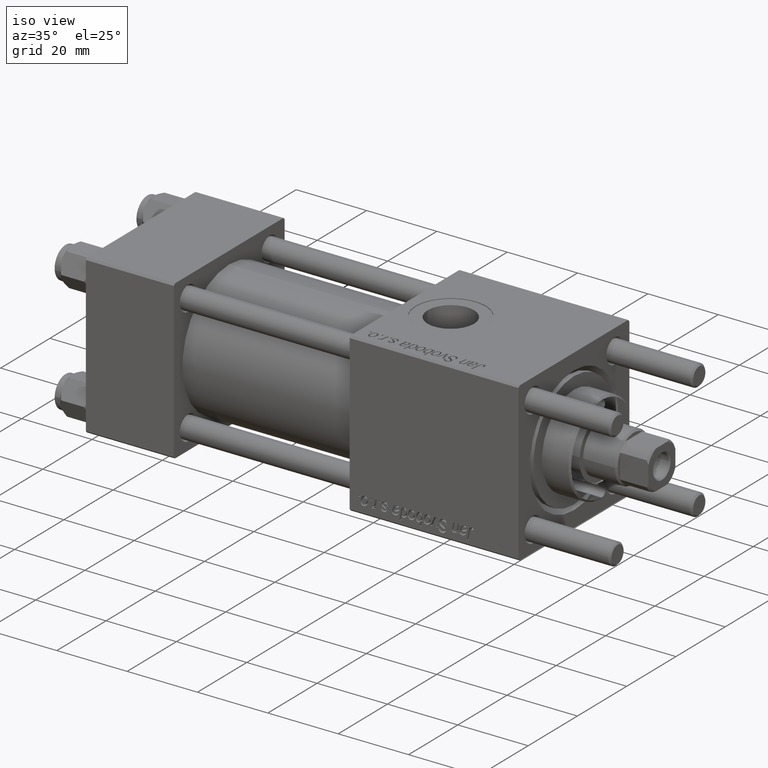
[diagram: clean part render]
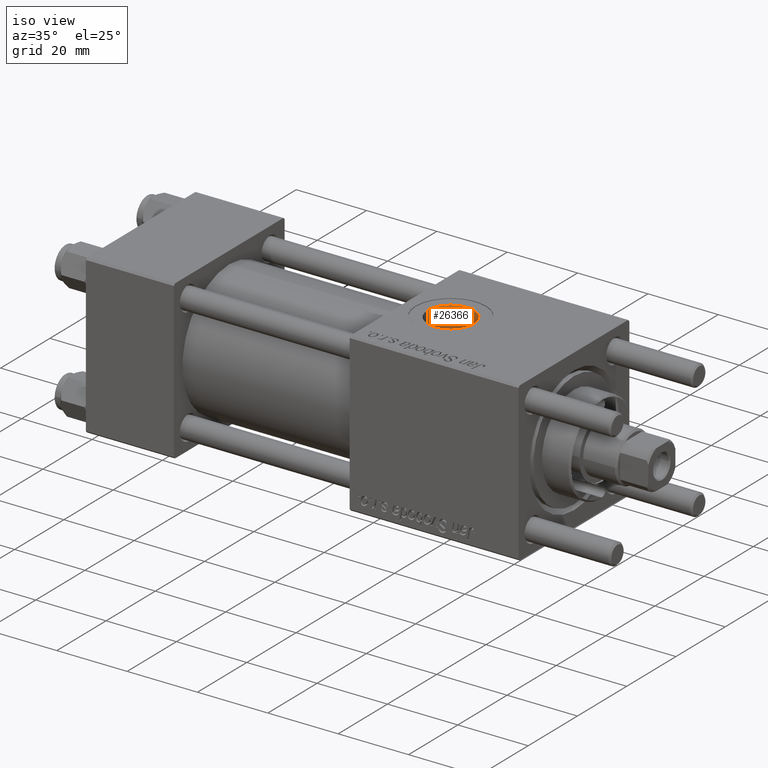
[diagram: same view with one face highlighted and labeled with its STEP entity id]
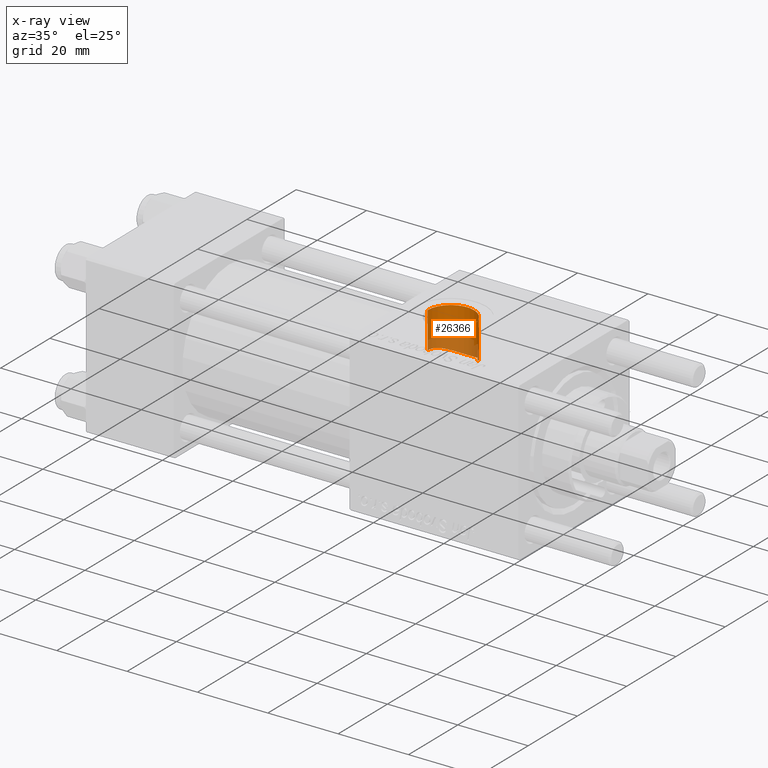
[diagram: x-ray of the same camera — body ghosted, the highlighted face saturated]
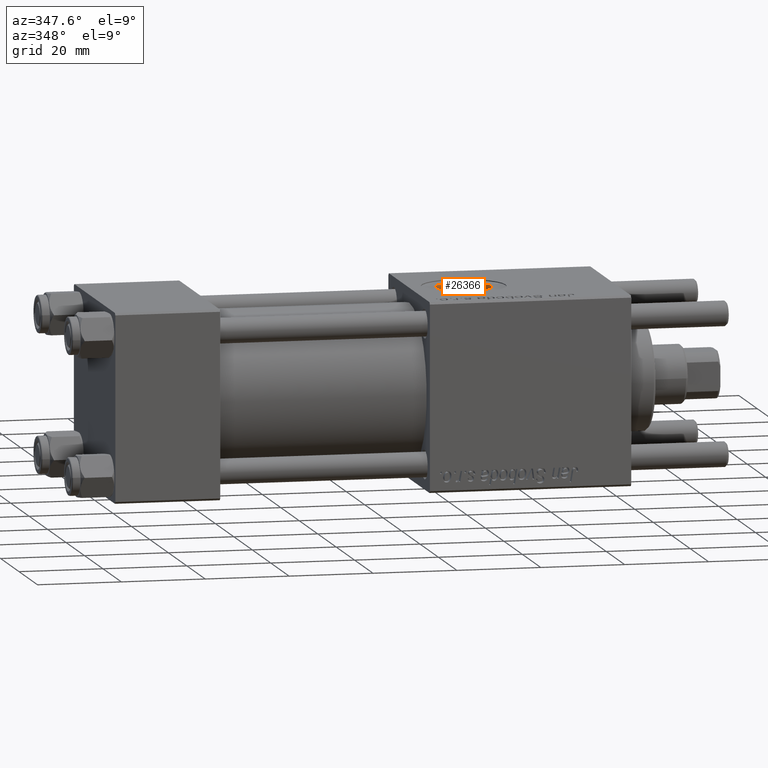
[diagram: same view with one face highlighted and labeled with its STEP entity id]
A machine part, iso view. The second image highlights one B-rep face of the part: STEP entity #26366.
The next image is the same camera in x-ray: the body ghosted, the highlighted face saturated — about 32% of this face is hidden behind the body in this view.
A second angle (auxiliary view) of the same face is appended — the face is thin or edge-on in the first view.
In plain terms, the highlighted cylindrical surface (edge-blend (fillet) strip) has radius 6.58 mm, axis along (0, 0, -1).
Its self-contained STEP definition (entity closure, byte-faithful):
#203 = CARTESIAN_POINT ( 'NONE',  ( 94.58000000000001251, -4.398352834091461452E-15, 45.29999999999999005 ) ) ;
#956 = CIRCLE ( 'NONE', #32215, 6.580000000000002736 ) ;
#1373 = EDGE_CURVE ( 'NONE', #36715, #36521, #47952, .T. ) ;
#2569 = LINE ( 'NONE', #21002, #34318 ) ;
#2950 = DIRECTION ( 'NONE',  ( -0.000000000000000000, -0.000000000000000000, -1.000000000000000000 ) ) ;
#2982 = CARTESIAN_POINT ( 'NONE',  ( 87.82138093783677846, 6.589573402368412047, 10.02884697551796478 ) ) ;
#3177 = B_SPLINE_CURVE_WITH_KNOTS ( 'NONE', 3,
 ( #36411, #9929, #40732, #45338, #42711, #28636, #55096, #7306, #28911, #46745, #41862, #33223, #55655, #24293, #50777, #42436, #46189, #24877, #32939, #20554, #55378, #19993, #28347, #11628, #2982, #50496, #15676, #33792, #37265, #20835, #24581, #11346, #37548, #29477, #46463, #47034, #38109, #7590, #6734, #38395 ),
 .UNSPECIFIED., .F., .F.,
 ( 4, 2, 2, 2, 2, 2, 2, 2, 2, 2, 2, 2, 2, 2, 2, 2, 2, 2, 2, 4 ),
 ( 0.01908272948376852837, 0.02027211068882234235, 0.02146149189387615633, 0.02205618249640306158, 0.02265087309892997031, 0.02384025430398376347, 0.02502963550903755663, 0.02562432611156446882, 0.02621901671409138102, 0.02740839791914520540, 0.02800308852167211413, 0.02859777912419902285, 0.02978716032925284724, 0.03097654153430666815, 0.03216592273936048907, 0.03335530394441431346, 0.03454468514946813784, 0.03573406635452195529, 0.03692344755957577968, 0.03811282876462960406 ),
 .UNSPECIFIED. ) ;
#3869 = CARTESIAN_POINT ( 'NONE',  ( 81.42000000000000171, -5.204170427930420494E-15, 22.29999999999999716 ) ) ;
#5803 = CARTESIAN_POINT ( 'NONE',  ( 88.00000000000001421, -5.204170427930420494E-15, 45.29999999999999005 ) ) ;
#6734 = CARTESIAN_POINT ( 'NONE',  ( 94.18483796286322729, 2.281096005955299155, 11.78754883984398028 ) ) ;
#7306 = CARTESIAN_POINT ( 'NONE',  ( 82.16614062154590670, 3.049694619472453017, 11.60741639897010735 ) ) ;
#7590 = CARTESIAN_POINT ( 'NONE',  ( 94.03738513764136542, 2.645683237586368364, 11.71024983958922583 ) ) ;
#8812 = ORIENTED_EDGE ( 'NONE', *, *, #37282, .T. ) ;
#9346 = CARTESIAN_POINT ( 'NONE',  ( 81.42000000000000171, -5.204170427930420494E-15, 45.29999999999999005 ) ) ;
#9929 = CARTESIAN_POINT ( 'NONE',  ( 81.42000000000004434, 0.3976591527617308608, 12.00000000000000533 ) ) ;
#11346 = CARTESIAN_POINT ( 'NONE',  ( 91.88215370346611621, 5.326621984685210087, 10.75555448901162414 ) ) ;
#11628 = CARTESIAN_POINT ( 'NONE',  ( 87.42561790000441135, 6.566992248200678617, 10.04387831561290234 ) ) ;
#12754 = CARTESIAN_POINT ( 'NONE',  ( 94.58000000000001251, 2.020172399822898567E-15, 16.50000000000000000 ) ) ;
#13074 = VERTEX_POINT ( 'NONE', #37083 ) ;
#15244 = VERTEX_POINT ( 'NONE', #24998 ) ;
#15404 = VERTEX_POINT ( 'NONE', #53440 ) ;
#15676 = CARTESIAN_POINT ( 'NONE',  ( 89.01891393464315172, 6.512687558946026911, 10.07943174470872272 ) ) ;
#19196 = VECTOR ( 'NONE', #22024, 1000.000000000000000 ) ;
#19658 = ORIENTED_EDGE ( 'NONE', *, *, #53837, .F. ) ;
#19993 = CARTESIAN_POINT ( 'NONE',  ( 86.63652304892134737, 6.440225530122367203, 10.12553965146808110 ) ) ;
#20155 = DIRECTION ( 'NONE',  ( 0.000000000000000000, 0.000000000000000000, -1.000000000000000000 ) ) ;
#20554 = CARTESIAN_POINT ( 'NONE',  ( 86.06381098789942996, 6.291694806526731298, 10.21860835373034782 ) ) ;
#20835 = CARTESIAN_POINT ( 'NONE',  ( 90.89150051817900078, 5.923651265023259782, 10.43747821104793339 ) ) ;
#21002 = CARTESIAN_POINT ( 'NONE',  ( 94.30000000000001137, 1.899052395275078853, 45.29999999999999005 ) ) ;
#22024 = DIRECTION ( 'NONE',  ( 0.000000000000000000, 0.000000000000000000, -1.000000000000000000 ) ) ;
#22793 = CYLINDRICAL_SURFACE ( 'NONE', #34928, 6.580000000000002736 ) ;
#22915 = VECTOR ( 'NONE', #52885, 1000.000000000000000 ) ;
#23032 = EDGE_CURVE ( 'NONE', #38481, #13074, #43618, .T. ) ;
#24293 = CARTESIAN_POINT ( 'NONE',  ( 84.01097073899009615, 5.236455063200054383, 10.79801533958693049 ) ) ;
#24581 = CARTESIAN_POINT ( 'NONE',  ( 91.23583201536588660, 5.742247844999425865, 10.53951819678818680 ) ) ;
#24877 = CARTESIAN_POINT ( 'NONE',  ( 85.15847559875078332, 5.947407073964698476, 10.42466916922575493 ) ) ;
#24998 = CARTESIAN_POINT ( 'NONE',  ( 94.30000000000001137, 1.899052395275078853, 11.84878052796995718 ) ) ;
#25585 = CARTESIAN_POINT ( 'NONE',  ( 94.58000000000001251, 0.6476041116638452388, 16.50000000000000000 ) ) ;
#26366 = ADVANCED_FACE ( 'NONE', ( #27122 ), #22793, .F. ) ;
#27122 = FACE_OUTER_BOUND ( 'NONE', #32329, .T. ) ;
#27123 = ORIENTED_EDGE ( 'NONE', *, *, #49396, .F. ) ;
#28347 = CARTESIAN_POINT ( 'NONE',  ( 86.83419489992905937, 6.478967816313746297, 10.10070273480327430 ) ) ;
#28636 = CARTESIAN_POINT ( 'NONE',  ( 81.91700611386447406, 2.516447426058158410, 11.73468626117324298 ) ) ;
#28911 = CARTESIAN_POINT ( 'NONE',  ( 82.25859302551884866, 3.220243119365621798, 11.56113513882421096 ) ) ;
#29477 = CARTESIAN_POINT ( 'NONE',  ( 92.75223196117465818, 4.567322448867138007, 11.10049212416560493 ) ) ;
#29891 = CARTESIAN_POINT ( 'NONE',  ( 94.30000000000001137, 1.899052395275078853, 16.39035081991841025 ) ) ;
#32215 = AXIS2_PLACEMENT_3D ( 'NONE', #34037, #2950, #51593 ) ;
#32329 = EDGE_LOOP ( 'NONE', ( #27123, #19658, #39306, #8812, #37771, #33559 ) ) ;
#32939 = CARTESIAN_POINT ( 'NONE',  ( 85.51128222741164109, 6.103612828859660944, 10.33283268697370794 ) ) ;
#33223 = CARTESIAN_POINT ( 'NONE',  ( 83.29103396094789957, 4.612007366749330650, 11.08271043945085843 ) ) ;
#33559 = ORIENTED_EDGE ( 'NONE', *, *, #1373, .T. ) ;
#33792 = CARTESIAN_POINT ( 'NONE',  ( 89.79279569586574894, 6.343435066235461051, 10.18679906040885719 ) ) ;
#34037 = CARTESIAN_POINT ( 'NONE',  ( 88.00000000000001421, -5.204170427930420494E-15, 22.29999999999999716 ) ) ;
#34156 = EDGE_CURVE ( 'NONE', #36715, #15244, #2569, .T. ) ;
#34318 = VECTOR ( 'NONE', #20155, 1000.000000000000000 ) ;
#34928 = AXIS2_PLACEMENT_3D ( 'NONE', #5803, #40359, #40924 ) ;
#36411 = CARTESIAN_POINT ( 'NONE',  ( 81.42000000000000171, 1.469576107744199801E-15, 12.00000000000000178 ) ) ;
#36521 = VERTEX_POINT ( 'NONE', #12754 ) ;
#36715 = VERTEX_POINT ( 'NONE', #29891 ) ;
#37083 = CARTESIAN_POINT ( 'NONE',  ( 81.42000000000000171, 1.469576107744199801E-15, 12.00000000000000178 ) ) ;
#37265 = CARTESIAN_POINT ( 'NONE',  ( 90.16689331473169489, 6.225350826966485229, 10.26038999243691663 ) ) ;
#37282 = EDGE_CURVE ( 'NONE', #13074, #15244, #3177, .T. ) ;
#37548 = CARTESIAN_POINT ( 'NONE',  ( 92.18812012102893050, 5.089576879915268748, 10.87095059937355934 ) ) ;
#37771 = ORIENTED_EDGE ( 'NONE', *, *, #34156, .F. ) ;
#38109 = CARTESIAN_POINT ( 'NONE',  ( 93.68108973531616357, 3.342884759177825238, 11.53059896909529591 ) ) ;
#38395 = CARTESIAN_POINT ( 'NONE',  ( 94.30000000000001137, 1.899052395275078853, 11.84878052796995718 ) ) ;
#38481 = VERTEX_POINT ( 'NONE', #3869 ) ;
#39306 = ORIENTED_EDGE ( 'NONE', *, *, #23032, .T. ) ;
#39672 = LINE ( 'NONE', #203, #22915 ) ;
#40359 = DIRECTION ( 'NONE',  ( 0.000000000000000000, 0.000000000000000000, -1.000000000000000000 ) ) ;
#40732 = CARTESIAN_POINT ( 'NONE',  ( 81.45705646777146569, 0.8024769132757282319, 11.97956798721945937 ) ) ;
#40924 = DIRECTION ( 'NONE',  ( -1.000000000000000000, 0.000000000000000000, 0.000000000000000000 ) ) ;
#41862 = CARTESIAN_POINT ( 'NONE',  ( 82.78475287781570557, 4.030653862891778516, 11.30711776153493808 ) ) ;
#42294 = CARTESIAN_POINT ( 'NONE',  ( 94.58000000000001251, 2.020172399822898567E-15, 16.50000000000000000 ) ) ;
#42436 = CARTESIAN_POINT ( 'NONE',  ( 84.48443970993218954, 5.565459456558937035, 10.63203912863488831 ) ) ;
#42711 = CARTESIAN_POINT ( 'NONE',  ( 81.70724907846415874, 1.963001504588604673, 11.84432785252562326 ) ) ;
#43618 = LINE ( 'NONE', #9346, #19196 ) ;
#45338 = CARTESIAN_POINT ( 'NONE',  ( 81.60104442533068436, 1.583491968934688687, 11.90153652017558450 ) ) ;
#46189 = CARTESIAN_POINT ( 'NONE',  ( 84.65070684754140018, 5.667099199368138329, 10.57805895296173126 ) ) ;
#46463 = CARTESIAN_POINT ( 'NONE',  ( 93.00866761081064737, 4.284465530078829687, 11.21374664850203651 ) ) ;
#46745 = CARTESIAN_POINT ( 'NONE',  ( 82.55681353800792976, 3.717176390455099622, 11.41498337564068599 ) ) ;
#47034 = CARTESIAN_POINT ( 'NONE',  ( 93.47237423914735643, 3.673760512163765313, 11.42839632120319138 ) ) ;
#47174 = CARTESIAN_POINT ( 'NONE',  ( 94.48644965059656897, 1.280516118087120070, 16.46201693687124745 ) ) ;
#47952 = B_SPLINE_CURVE_WITH_KNOTS ( 'NONE', 3,
 ( #51201, #47174, #25585, #42294 ),
 .UNSPECIFIED., .F., .F.,
 ( 4, 4 ),
 ( 0.000000000000000000, 0.001922561461481083313 ),
 .UNSPECIFIED. ) ;
#49396 = EDGE_CURVE ( 'NONE', #15404, #36521, #39672, .T. ) ;
#50496 = CARTESIAN_POINT ( 'NONE',  ( 88.61588198934801142, 6.563160196869033847, 10.04615237361005953 ) ) ;
#50777 = CARTESIAN_POINT ( 'NONE',  ( 84.16489446748850867, 5.350277438619694514, 10.74193308139748204 ) ) ;
#51201 = CARTESIAN_POINT ( 'NONE',  ( 94.30000000000001137, 1.899052395275078853, 16.39035081991841025 ) ) ;
#51593 = DIRECTION ( 'NONE',  ( 1.000000000000000000, 0.000000000000000000, 0.000000000000000000 ) ) ;
#52885 = DIRECTION ( 'NONE',  ( 0.000000000000000000, 0.000000000000000000, -1.000000000000000000 ) ) ;
#53440 = CARTESIAN_POINT ( 'NONE',  ( 94.58000000000001251, -4.398352834091461452E-15, 22.29999999999999716 ) ) ;
#53837 = EDGE_CURVE ( 'NONE', #38481, #15404, #956, .T. ) ;
#55096 = CARTESIAN_POINT ( 'NONE',  ( 81.99551268624995259, 2.698274377936877855, 11.69410398929686501 ) ) ;
#55378 = CARTESIAN_POINT ( 'NONE',  ( 86.25189730832173041, 6.346629913135778622, 10.18446595840853597 ) ) ;
#55655 = CARTESIAN_POINT ( 'NONE',  ( 83.56581515316379694, 4.876481215027403060, 10.96769431425572172 ) ) ;